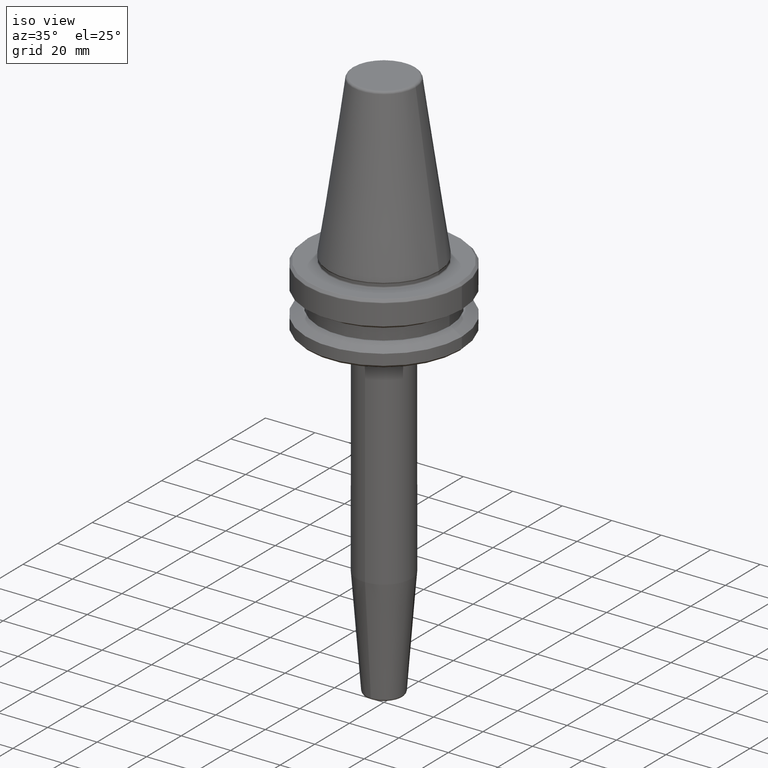
[diagram: clean part render]
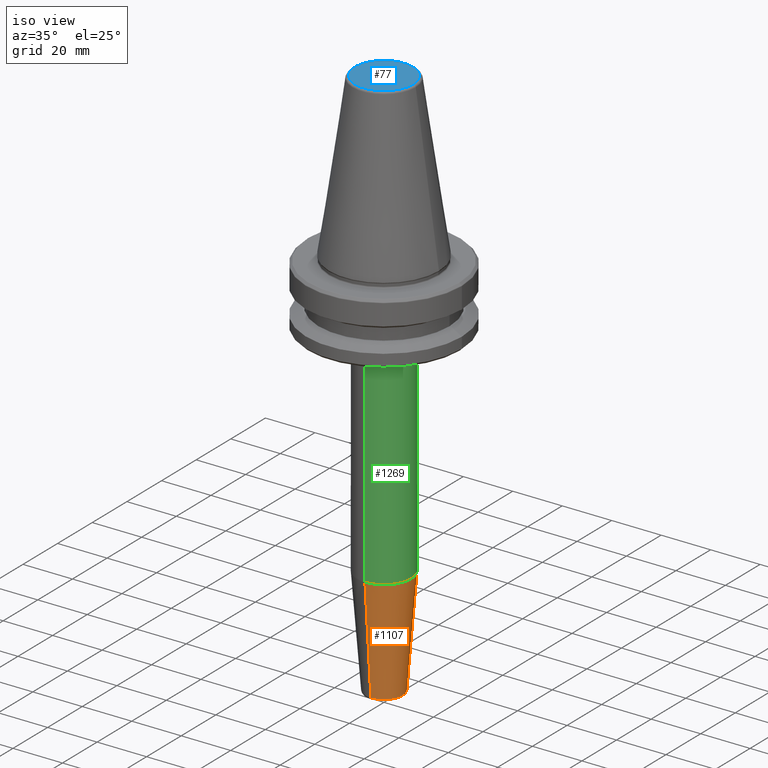
[diagram: same view with three faces highlighted in distinct colors, each labeled with its STEP entity id]
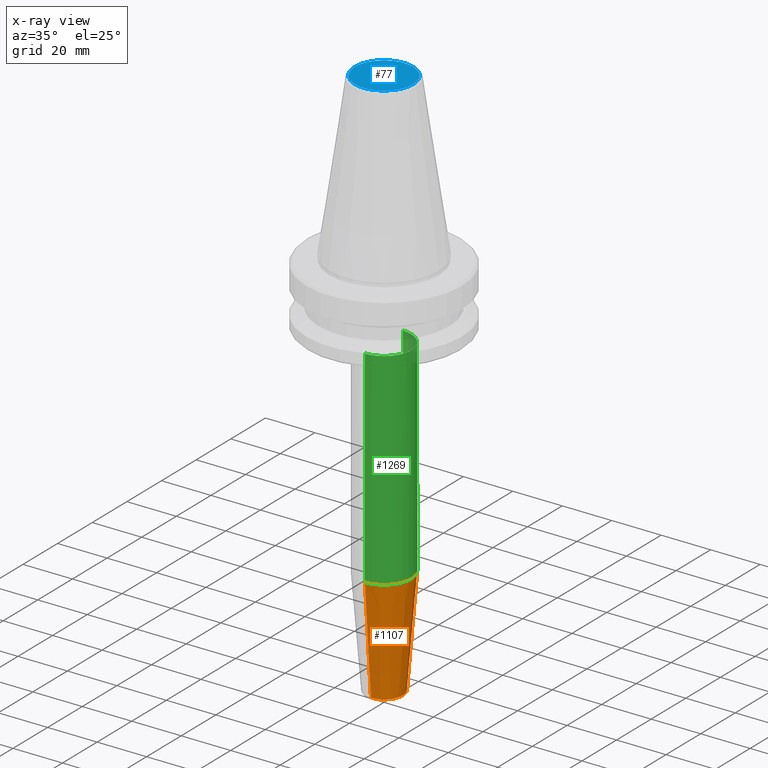
[diagram: x-ray of the same camera — body ghosted, the three highlighted faces saturated]
A machine part, iso view with three faces highlighted in distinct colors.
The next image is the same camera in x-ray (body ghosted, the three faces saturated) — at least one of them is partly hidden behind the body in this view.
Their STEP definitions:

[orange] entity #1107 — the highlighted conical surface has half-angle 4.5 deg.
#36 = CARTESIAN_POINT ( 'NONE',  ( 1.347111479062088200E-015, 11.00000000000000500, -115.5282834233806300 ) ) ;
#58 = DIRECTION ( 'NONE',  ( 0.0000000000000000000, 1.000000000000000000, 0.0000000000000000000 ) ) ;
#61 = EDGE_CURVE ( 'NONE', #876, #1091, #1073, .T. ) ;
#76 = DIRECTION ( 'NONE',  ( -0.0000000000000000000, 7.550453949630299600E-017, -1.000000000000000000 ) ) ;
#78 = EDGE_LOOP ( 'NONE', ( #1088, #335, #282, #533 ) ) ;
#84 = CARTESIAN_POINT ( 'NONE',  ( 0.0000000000000000000, -7.572526842074896800, -159.0784590957278200 ) ) ;
#94 = EDGE_CURVE ( 'NONE', #876, #307, #499, .T. ) ;
#95 = CARTESIAN_POINT ( 'NONE',  ( 0.0000000000000000000, -10.99999999999999100, -115.5282834233806300 ) ) ;
#125 = AXIS2_PLACEMENT_3D ( 'NONE', #557, #1033, #742 ) ;
#133 = EDGE_CURVE ( 'NONE', #1091, #145, #1206, .T. ) ;
#145 = VERTEX_POINT ( 'NONE', #95 ) ;
#152 = EDGE_CURVE ( 'NONE', #307, #145, #160, .T. ) ;
#160 = CIRCLE ( 'NONE', #1053, 10.99999999999999800 ) ;
#257 = FACE_OUTER_BOUND ( 'NONE', #78, .T. ) ;
#259 = VECTOR ( 'NONE', #484, 1000.000000000000100 ) ;
#282 = ORIENTED_EDGE ( 'NONE', *, *, #152, .T. ) ;
#307 = VERTEX_POINT ( 'NONE', #36 ) ;
#335 = ORIENTED_EDGE ( 'NONE', *, *, #94, .T. ) ;
#466 = DIRECTION ( 'NONE',  ( 0.0000000000000000000, 1.000000000000000000, 0.0000000000000000000 ) ) ;
#484 = DIRECTION ( 'NONE',  ( 9.608468044708412500E-018, 0.07845909572783103800, 0.9969173337331289600 ) ) ;
#499 = LINE ( 'NONE', #1062, #259 ) ;
#533 = ORIENTED_EDGE ( 'NONE', *, *, #133, .F. ) ;
#557 = CARTESIAN_POINT ( 'NONE',  ( 0.0000000000000000000, 9.972523231404222100E-015, -159.0784590957278200 ) ) ;
#688 = VECTOR ( 'NONE', #945, 1000.000000000000100 ) ;
#692 = CARTESIAN_POINT ( 'NONE',  ( 0.0000000000000000000, 7.572526842074914600, -159.0784590957278200 ) ) ;
#742 = DIRECTION ( 'NONE',  ( 0.0000000000000000000, -1.000000000000000000, 0.0000000000000000000 ) ) ;
#761 = CARTESIAN_POINT ( 'NONE',  ( 0.0000000000000000000, 9.972523231404222100E-015, -159.0784590957278200 ) ) ;
#770 = CARTESIAN_POINT ( 'NONE',  ( 0.0000000000000000000, 6.684287272280548800E-015, -115.5282834233806300 ) ) ;
#876 = VERTEX_POINT ( 'NONE', #692 ) ;
#945 = DIRECTION ( 'NONE',  ( 0.0000000000000000000, -0.07845909572783117700, 0.9969173337331289600 ) ) ;
#1033 = DIRECTION ( 'NONE',  ( 0.0000000000000000000, -7.550453949630299600E-017, 1.000000000000000000 ) ) ;
#1053 = AXIS2_PLACEMENT_3D ( 'NONE', #770, #76, #466 ) ;
#1062 = CARTESIAN_POINT ( 'NONE',  ( 9.273670758604447600E-016, 7.572526842074916300, -159.0784590957278200 ) ) ;
#1073 = CIRCLE ( 'NONE', #1084, 7.572526842074905700 ) ;
#1084 = AXIS2_PLACEMENT_3D ( 'NONE', #761, #1254, #58 ) ;
#1088 = ORIENTED_EDGE ( 'NONE', *, *, #61, .F. ) ;
#1091 = VERTEX_POINT ( 'NONE', #1230 ) ;
#1107 = ADVANCED_FACE ( 'NONE', ( #257 ), #1231, .T. ) ;
#1206 = LINE ( 'NONE', #84, #688 ) ;
#1230 = CARTESIAN_POINT ( 'NONE',  ( 9.273670758604445600E-016, -7.572526842074895900, -159.0784590957278200 ) ) ;
#1231 = CONICAL_SURFACE ( 'NONE', #125, 7.572526842074906600, 0.07853981633973095000 ) ;
#1254 = DIRECTION ( 'NONE',  ( -0.0000000000000000000, 7.550453949630299600E-017, -1.000000000000000000 ) ) ;

[blue] entity #77 — the highlighted planar face has unit normal (0, -0, 1).
#51 = EDGE_CURVE ( 'NONE', #637, #472, #1031, .T. ) ;
#77 = ADVANCED_FACE ( 'NONE', ( #745 ), #403, .T. ) ;
#190 = DIRECTION ( 'NONE',  ( 1.000000000000000000, 0.0000000000000000000, 0.0000000000000000000 ) ) ;
#303 = CARTESIAN_POINT ( 'NONE',  ( 0.0000000000000000000, 0.0000000000000000000, 65.40000000000000600 ) ) ;
#321 = AXIS2_PLACEMENT_3D ( 'NONE', #1142, #562, #1239 ) ;
#356 = CIRCLE ( 'NONE', #321, 11.82266672057007100 ) ;
#376 = ORIENTED_EDGE ( 'NONE', *, *, #398, .T. ) ;
#398 = EDGE_CURVE ( 'NONE', #472, #637, #356, .T. ) ;
#403 = PLANE ( 'NONE',  #643 ) ;
#472 = VERTEX_POINT ( 'NONE', #854 ) ;
#532 = CARTESIAN_POINT ( 'NONE',  ( 0.0000000000000000000, 0.0000000000000000000, 65.40000000000000600 ) ) ;
#562 = DIRECTION ( 'NONE',  ( -0.0000000000000000000, -0.0000000000000000000, 1.000000000000000000 ) ) ;
#577 = DIRECTION ( 'NONE',  ( -0.0000000000000000000, -0.0000000000000000000, 1.000000000000000000 ) ) ;
#585 = CARTESIAN_POINT ( 'NONE',  ( 11.82266672057007100, 0.0000000000000000000, 65.40000000000000600 ) ) ;
#625 = ORIENTED_EDGE ( 'NONE', *, *, #51, .T. ) ;
#637 = VERTEX_POINT ( 'NONE', #585 ) ;
#643 = AXIS2_PLACEMENT_3D ( 'NONE', #303, #875, #190 ) ;
#745 = FACE_OUTER_BOUND ( 'NONE', #1236, .T. ) ;
#854 = CARTESIAN_POINT ( 'NONE',  ( -11.82266672057007100, 1.508450503654657300E-015, 65.40000000000000600 ) ) ;
#858 = DIRECTION ( 'NONE',  ( 1.000000000000000000, 0.0000000000000000000, 0.0000000000000000000 ) ) ;
#875 = DIRECTION ( 'NONE',  ( 0.0000000000000000000, -0.0000000000000000000, 1.000000000000000000 ) ) ;
#1031 = CIRCLE ( 'NONE', #1032, 11.82266672057007100 ) ;
#1032 = AXIS2_PLACEMENT_3D ( 'NONE', #532, #577, #858 ) ;
#1142 = CARTESIAN_POINT ( 'NONE',  ( 0.0000000000000000000, 0.0000000000000000000, 65.40000000000000600 ) ) ;
#1236 = EDGE_LOOP ( 'NONE', ( #625, #376 ) ) ;
#1239 = DIRECTION ( 'NONE',  ( 1.000000000000000000, 0.0000000000000000000, 0.0000000000000000000 ) ) ;

[green] entity #1269 — the highlighted cylindrical surface (edge-blend (fillet) strip) has radius 11 mm, axis along (-0, 0, -1).
#2 = EDGE_CURVE ( 'NONE', #1189, #695, #991, .T. ) ;
#5 = ORIENTED_EDGE ( 'NONE', *, *, #300, .T. ) ;
#23 = EDGE_CURVE ( 'NONE', #893, #145, #735, .T. ) ;
#36 = CARTESIAN_POINT ( 'NONE',  ( 1.347111479062088200E-015, 11.00000000000000500, -115.5282834233806300 ) ) ;
#40 = EDGE_CURVE ( 'NONE', #1189, #307, #556, .T. ) ;
#48 = AXIS2_PLACEMENT_3D ( 'NONE', #914, #237, #819 ) ;
#76 = DIRECTION ( 'NONE',  ( -0.0000000000000000000, 7.550453949630299600E-017, -1.000000000000000000 ) ) ;
#95 = CARTESIAN_POINT ( 'NONE',  ( 0.0000000000000000000, -10.99999999999999100, -115.5282834233806300 ) ) ;
#124 = DIRECTION ( 'NONE',  ( -0.0000000000000000000, 7.550453949630299600E-017, -1.000000000000000000 ) ) ;
#126 = CARTESIAN_POINT ( 'NONE',  ( 0.0000000000000000000, 11.00000000000002300, -160.0000000000000000 ) ) ;
#145 = VERTEX_POINT ( 'NONE', #95 ) ;
#152 = EDGE_CURVE ( 'NONE', #307, #145, #160, .T. ) ;
#160 = CIRCLE ( 'NONE', #1053, 10.99999999999999800 ) ;
#216 = CIRCLE ( 'NONE', #48, 11.00000000000001200 ) ;
#237 = DIRECTION ( 'NONE',  ( 0.0000000000000000000, 0.0000000000000000000, -1.000000000000000000 ) ) ;
#300 = EDGE_CURVE ( 'NONE', #695, #893, #216, .T. ) ;
#302 = VECTOR ( 'NONE', #620, 1000.000000000000000 ) ;
#307 = VERTEX_POINT ( 'NONE', #36 ) ;
#443 = EDGE_LOOP ( 'NONE', ( #634, #5, #546, #877, #1196 ) ) ;
#466 = DIRECTION ( 'NONE',  ( 0.0000000000000000000, 1.000000000000000000, 0.0000000000000000000 ) ) ;
#467 = DIRECTION ( 'NONE',  ( 0.0000000000000000000, 0.0000000000000000000, -1.000000000000000000 ) ) ;
#483 = VECTOR ( 'NONE', #1211, 1000.000000000000000 ) ;
#546 = ORIENTED_EDGE ( 'NONE', *, *, #23, .T. ) ;
#556 = LINE ( 'NONE', #126, #302 ) ;
#620 = DIRECTION ( 'NONE',  ( -0.0000000000000000000, 7.550453949630299600E-017, -1.000000000000000000 ) ) ;
#622 = CYLINDRICAL_SURFACE ( 'NONE', #910, 11.00000000000001200 ) ;
#634 = ORIENTED_EDGE ( 'NONE', *, *, #2, .T. ) ;
#654 = CARTESIAN_POINT ( 'NONE',  ( 0.0000000000000000000, 3.775226974815149000E-016, -32.00000000000000000 ) ) ;
#655 = CARTESIAN_POINT ( 'NONE',  ( 0.0000000000000000000, 11.00000000000001200, -32.00000000000000000 ) ) ;
#695 = VERTEX_POINT ( 'NONE', #1261 ) ;
#727 = DIRECTION ( 'NONE',  ( -1.000000000000000000, 0.0000000000000000000, 0.0000000000000000000 ) ) ;
#735 = LINE ( 'NONE', #825, #483 ) ;
#770 = CARTESIAN_POINT ( 'NONE',  ( 0.0000000000000000000, 6.684287272280548800E-015, -115.5282834233806300 ) ) ;
#771 = AXIS2_PLACEMENT_3D ( 'NONE', #654, #467, #727 ) ;
#798 = CARTESIAN_POINT ( 'NONE',  ( 1.347111479062090600E-015, -11.00000000000001100, -32.00000000000000000 ) ) ;
#819 = DIRECTION ( 'NONE',  ( -1.000000000000000000, 0.0000000000000000000, 0.0000000000000000000 ) ) ;
#825 = CARTESIAN_POINT ( 'NONE',  ( 1.347111479062090200E-015, -11.00000000000000400, -160.0000000000000000 ) ) ;
#877 = ORIENTED_EDGE ( 'NONE', *, *, #152, .F. ) ;
#893 = VERTEX_POINT ( 'NONE', #798 ) ;
#902 = CARTESIAN_POINT ( 'NONE',  ( 0.0000000000000000000, 1.004210375300829800E-014, -160.0000000000000000 ) ) ;
#910 = AXIS2_PLACEMENT_3D ( 'NONE', #902, #124, #1001 ) ;
#914 = CARTESIAN_POINT ( 'NONE',  ( 0.0000000000000000000, 3.775226974815149000E-016, -32.00000000000000000 ) ) ;
#991 = CIRCLE ( 'NONE', #771, 11.00000000000001200 ) ;
#1001 = DIRECTION ( 'NONE',  ( 0.0000000000000000000, 1.000000000000000000, 0.0000000000000000000 ) ) ;
#1053 = AXIS2_PLACEMENT_3D ( 'NONE', #770, #76, #466 ) ;
#1181 = FACE_OUTER_BOUND ( 'NONE', #443, .T. ) ;
#1189 = VERTEX_POINT ( 'NONE', #655 ) ;
#1196 = ORIENTED_EDGE ( 'NONE', *, *, #40, .F. ) ;
#1211 = DIRECTION ( 'NONE',  ( -0.0000000000000000000, 7.550453949630299600E-017, -1.000000000000000000 ) ) ;
#1261 = CARTESIAN_POINT ( 'NONE',  ( 11.00000000000001200, 2.030795876330443600E-015, -32.00000000000000000 ) ) ;
#1269 = ADVANCED_FACE ( 'NONE', ( #1181 ), #622, .T. ) ;